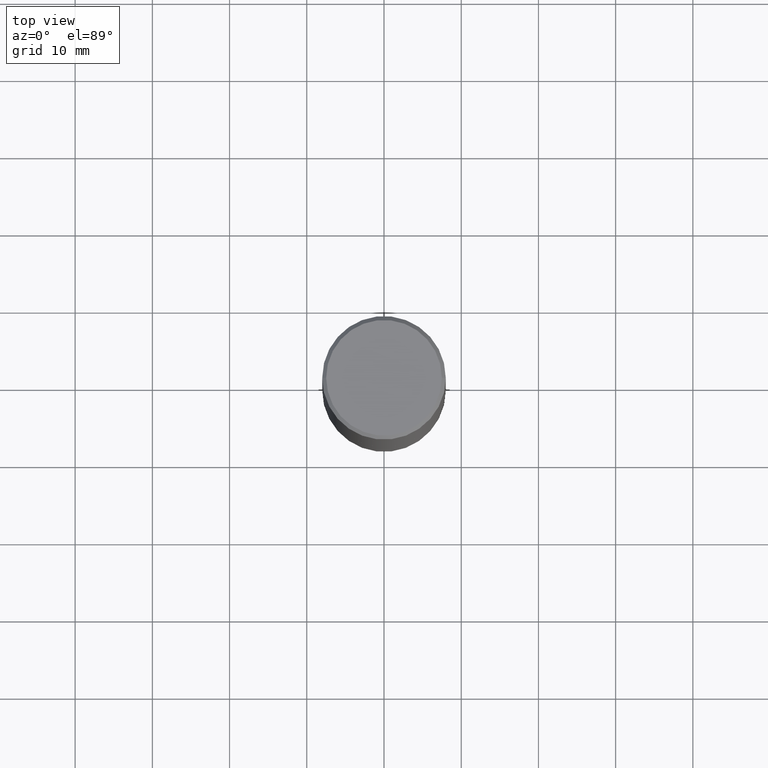
[diagram: clean part render]
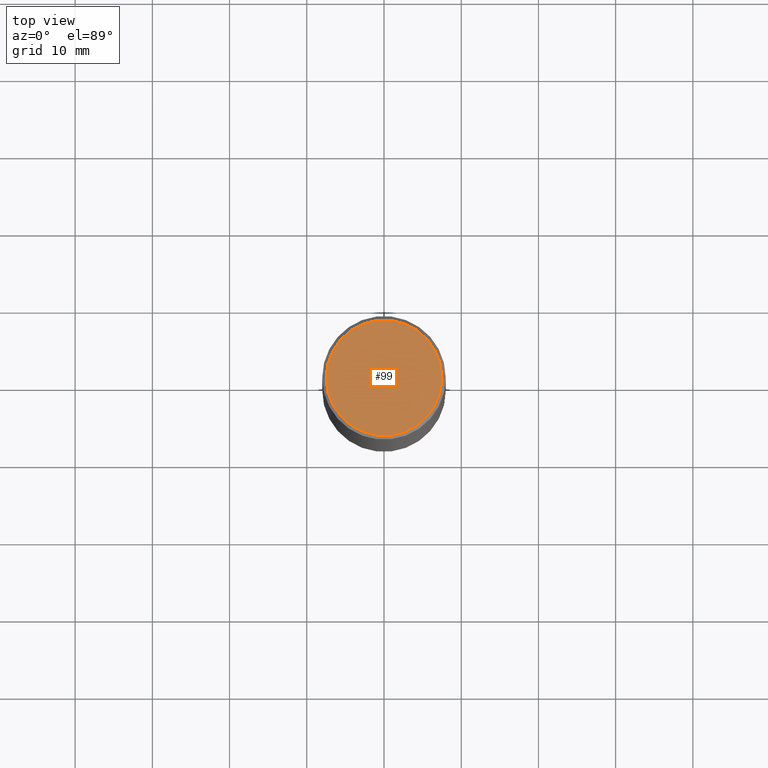
[diagram: same view with one face highlighted and labeled with its STEP entity id]
A machine part, top view. The second image highlights one B-rep face of the part: STEP entity #99.
In plain terms, the highlighted planar face has unit normal (0, -0, -1).
Its self-contained STEP definition (entity closure, byte-faithful):
#5 = DIRECTION ( 'NONE',  ( 1.000000000000000000, -6.982962677686267499E-15, 4.874125435057324435E-29 ) ) ;
#11 = ORIENTED_EDGE ( 'NONE', *, *, #226, .T. ) ;
#22 = AXIS2_PLACEMENT_3D ( 'NONE', #261, #161, #390 ) ;
#30 = FACE_OUTER_BOUND ( 'NONE', #242, .T. ) ;
#37 = CARTESIAN_POINT ( 'NONE',  ( 0.2949499999999998234, -2.127023677808859286E-15, 1.792775245842319231E-16 ) ) ;
#64 = CARTESIAN_POINT ( 'NONE',  ( -4.384175940207923203E-45, 6.259441315597878405E-31, 1.792775245842172799E-16 ) ) ;
#81 = VERTEX_POINT ( 'NONE', #245 ) ;
#99 = ADVANCED_FACE ( 'NONE', ( #30 ), #129, .F. ) ;
#120 = ORIENTED_EDGE ( 'NONE', *, *, #143, .T. ) ;
#128 = AXIS2_PLACEMENT_3D ( 'NONE', #309, #412, #187 ) ;
#129 = PLANE ( 'NONE',  #22 ) ;
#143 = EDGE_CURVE ( 'NONE', #81, #370, #400, .T. ) ;
#161 = DIRECTION ( 'NONE',  ( 2.438088387897960049E-29, -3.491481338843145188E-15, -1.000000000000000000 ) ) ;
#186 = CIRCLE ( 'NONE', #301, 0.2949499999999998234 ) ;
#187 = DIRECTION ( 'NONE',  ( 1.000000000000000000, -6.982962677686267499E-15, 4.874125435057324435E-29 ) ) ;
#226 = EDGE_CURVE ( 'NONE', #370, #81, #186, .T. ) ;
#242 = EDGE_LOOP ( 'NONE', ( #120, #11 ) ) ;
#245 = CARTESIAN_POINT ( 'NONE',  ( -0.2949499999999998234, 2.094539655171995318E-15, 1.792775245842027353E-16 ) ) ;
#261 = CARTESIAN_POINT ( 'NONE',  ( 2.059624841783562880E-15, 0.2949499999999998234, -9.401736585996764239E-16 ) ) ;
#301 = AXIS2_PLACEMENT_3D ( 'NONE', #64, #328, #5 ) ;
#309 = CARTESIAN_POINT ( 'NONE',  ( -4.384175940207923203E-45, 6.259441315597878405E-31, 1.792775245842172799E-16 ) ) ;
#328 = DIRECTION ( 'NONE',  ( -2.445468806185136597E-29, 3.491481338843145583E-15, 1.000000000000000000 ) ) ;
#370 = VERTEX_POINT ( 'NONE', #37 ) ;
#390 = DIRECTION ( 'NONE',  ( -1.000000000000000000, 6.982962677686265922E-15, -4.876176775795935793E-29 ) ) ;
#400 = CIRCLE ( 'NONE', #128, 0.2949499999999998234 ) ;
#412 = DIRECTION ( 'NONE',  ( -2.445468806185136597E-29, 3.491481338843145583E-15, 1.000000000000000000 ) ) ;